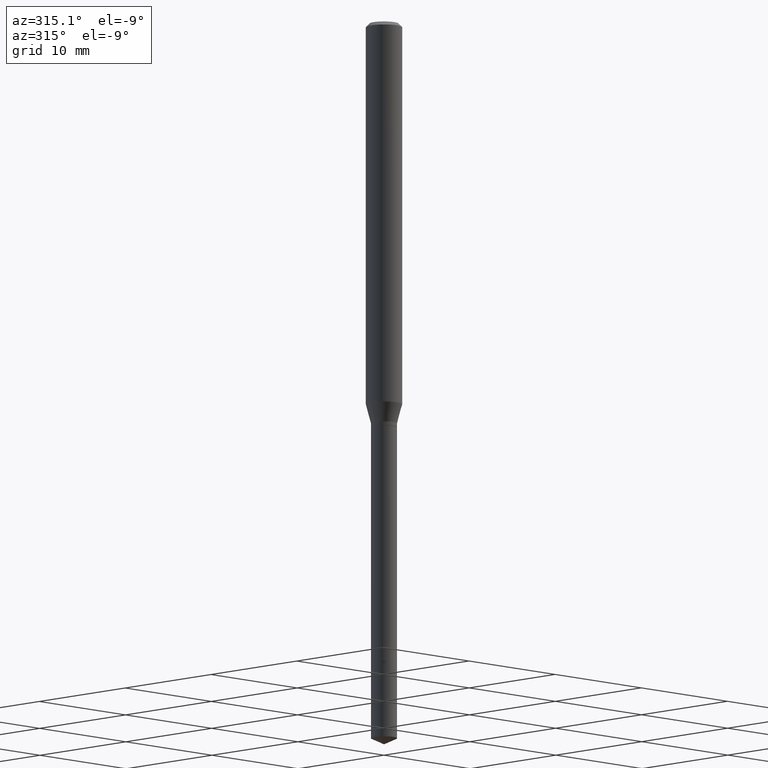
[diagram: clean part render]
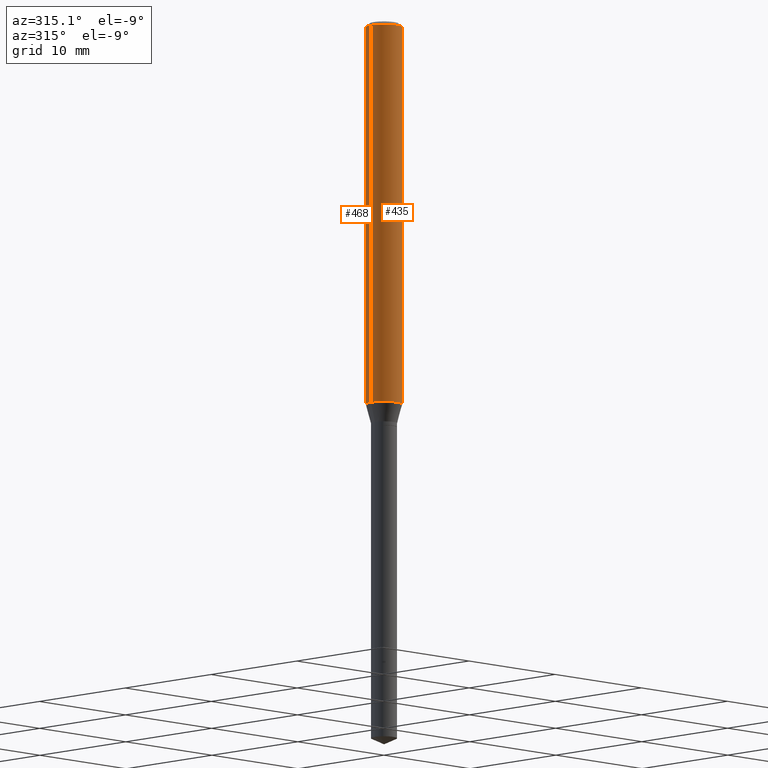
[diagram: same view with one multi-face feature highlighted, each face labeled with its STEP entity id]
A machine part, auxiliary view. The highlighted faces form ONE feature: a constant-radius fillet chain: 2 tangent blend faces with common blend radius 1.4999 mm. The faces share edges in the B-rep.
Their STEP definitions:
[1] entity #435 (Cylinder):
#10 = FACE_OUTER_BOUND ( 'NONE', #358, .T. ) ;
#14 = DIRECTION ( 'NONE',  ( -2.445468806185136877E-29, 3.491481338843145188E-15, 1.000000000000000000 ) ) ;
#22 = ORIENTED_EDGE ( 'NONE', *, *, #371, .T. ) ;
#30 = CARTESIAN_POINT ( 'NONE',  ( -0.05905000000000015098, -3.935656958967755285E-15, -1.247388148973221256 ) ) ;
#67 = CARTESIAN_POINT ( 'NONE',  ( 0.05905000000000007465, -4.123439461173745750E-16, 2.879382386107504074E-30 ) ) ;
#74 = VERTEX_POINT ( 'NONE', #30 ) ;
#100 = VERTEX_POINT ( 'NONE', #249 ) ;
#111 = AXIS2_PLACEMENT_3D ( 'NONE', #432, #349, #303 ) ;
#129 = CIRCLE ( 'NONE', #199, 0.05904999999999999832 ) ;
#147 = CYLINDRICAL_SURFACE ( 'NONE', #111, 0.05905000000000007465 ) ;
#148 = EDGE_CURVE ( 'NONE', #74, #177, #261, .T. ) ;
#153 = CARTESIAN_POINT ( 'NONE',  ( 2.888098660104664204E-31, -4.123439461173780263E-17, -0.01181000000000007218 ) ) ;
#162 = EDGE_CURVE ( 'NONE', #177, #223, #129, .T. ) ;
#164 = VECTOR ( 'NONE', #14, 39.37007874015748143 ) ;
#177 = VERTEX_POINT ( 'NONE', #190 ) ;
#187 = CARTESIAN_POINT ( 'NONE',  ( -0.05905000000000007465, 4.195754854663396902E-16, -2.904631170795525395E-30 ) ) ;
#190 = CARTESIAN_POINT ( 'NONE',  ( -0.05904999999999999832, -1.778657934056575972E-15, -0.01181000000000007218 ) ) ;
#195 = DIRECTION ( 'NONE',  ( -2.445468806185136597E-29, 3.491481338843145583E-15, 1.000000000000000000 ) ) ;
#199 = AXIS2_PLACEMENT_3D ( 'NONE', #153, #427, #430 ) ;
#213 = DIRECTION ( 'NONE',  ( -2.445468806185136877E-29, 3.491481338843145188E-15, 1.000000000000000000 ) ) ;
#223 = VERTEX_POINT ( 'NONE', #270 ) ;
#234 = AXIS2_PLACEMENT_3D ( 'NONE', #301, #195, #454 ) ;
#239 = VECTOR ( 'NONE', #213, 39.37007874015748143 ) ;
#249 = CARTESIAN_POINT ( 'NONE',  ( 0.05905000000000015098, -4.767576390551470487E-15, -1.247388148973221256 ) ) ;
#259 = ORIENTED_EDGE ( 'NONE', *, *, #148, .F. ) ;
#261 = LINE ( 'NONE', #187, #164 ) ;
#270 = CARTESIAN_POINT ( 'NONE',  ( 0.05904999999999999832, -4.535783407291118600E-16, -0.01181000000000007218 ) ) ;
#296 = LINE ( 'NONE', #67, #239 ) ;
#301 = CARTESIAN_POINT ( 'NONE',  ( 3.050448807519030637E-29, -4.355232444434095567E-15, -1.247388148973221256 ) ) ;
#303 = DIRECTION ( 'NONE',  ( 1.000000000000000000, -6.982962677686266711E-15, 4.876176775795936353E-29 ) ) ;
#332 = ORIENTED_EDGE ( 'NONE', *, *, #162, .F. ) ;
#349 = DIRECTION ( 'NONE',  ( -2.445468806185136597E-29, 3.491481338843145583E-15, 1.000000000000000000 ) ) ;
#358 = EDGE_LOOP ( 'NONE', ( #259, #376, #22, #332 ) ) ;
#371 = EDGE_CURVE ( 'NONE', #100, #223, #296, .T. ) ;
#376 = ORIENTED_EDGE ( 'NONE', *, *, #455, .T. ) ;
#427 = DIRECTION ( 'NONE',  ( -2.445468806185136597E-29, 3.491481338843145583E-15, 1.000000000000000000 ) ) ;
#430 = DIRECTION ( 'NONE',  ( 1.000000000000000000, -6.982962677686266711E-15, 0.000000000000000000 ) ) ;
#432 = CARTESIAN_POINT ( 'NONE',  ( 0.000000000000000000, 0.000000000000000000, 0.000000000000000000 ) ) ;
#435 = ADVANCED_FACE ( 'NONE', ( #10 ), #147, .T. ) ;
#449 = CIRCLE ( 'NONE', #234, 0.05905000000000015098 ) ;
#454 = DIRECTION ( 'NONE',  ( 1.000000000000000000, -6.982962677686271444E-15, 0.000000000000000000 ) ) ;
#455 = EDGE_CURVE ( 'NONE', #74, #100, #449, .T. ) ;
[2] entity #468 (Cylinder):
#14 = DIRECTION ( 'NONE',  ( -2.445468806185136877E-29, 3.491481338843145188E-15, 1.000000000000000000 ) ) ;
#18 = ORIENTED_EDGE ( 'NONE', *, *, #124, .T. ) ;
#30 = CARTESIAN_POINT ( 'NONE',  ( -0.05905000000000015098, -3.935656958967755285E-15, -1.247388148973221256 ) ) ;
#59 = EDGE_LOOP ( 'NONE', ( #18, #166, #140, #173 ) ) ;
#67 = CARTESIAN_POINT ( 'NONE',  ( 0.05905000000000007465, -4.123439461173745750E-16, 2.879382386107504074E-30 ) ) ;
#74 = VERTEX_POINT ( 'NONE', #30 ) ;
#100 = VERTEX_POINT ( 'NONE', #249 ) ;
#108 = FACE_OUTER_BOUND ( 'NONE', #59, .T. ) ;
#113 = DIRECTION ( 'NONE',  ( -2.445468806185136597E-29, 3.491481338843145583E-15, 1.000000000000000000 ) ) ;
#124 = EDGE_CURVE ( 'NONE', #100, #74, #168, .T. ) ;
#140 = ORIENTED_EDGE ( 'NONE', *, *, #411, .F. ) ;
#148 = EDGE_CURVE ( 'NONE', #74, #177, #261, .T. ) ;
#164 = VECTOR ( 'NONE', #14, 39.37007874015748143 ) ;
#166 = ORIENTED_EDGE ( 'NONE', *, *, #148, .T. ) ;
#168 = CIRCLE ( 'NONE', #434, 0.05905000000000015098 ) ;
#169 = CIRCLE ( 'NONE', #418, 0.05904999999999999832 ) ;
#173 = ORIENTED_EDGE ( 'NONE', *, *, #371, .F. ) ;
#177 = VERTEX_POINT ( 'NONE', #190 ) ;
#187 = CARTESIAN_POINT ( 'NONE',  ( -0.05905000000000007465, 4.195754854663396902E-16, -2.904631170795525395E-30 ) ) ;
#189 = CYLINDRICAL_SURFACE ( 'NONE', #255, 0.05905000000000007465 ) ;
#190 = CARTESIAN_POINT ( 'NONE',  ( -0.05904999999999999832, -1.778657934056575972E-15, -0.01181000000000007218 ) ) ;
#213 = DIRECTION ( 'NONE',  ( -2.445468806185136877E-29, 3.491481338843145188E-15, 1.000000000000000000 ) ) ;
#222 = CARTESIAN_POINT ( 'NONE',  ( 2.888098660104664204E-31, -4.123439461173780263E-17, -0.01181000000000007218 ) ) ;
#223 = VERTEX_POINT ( 'NONE', #270 ) ;
#229 = DIRECTION ( 'NONE',  ( 1.000000000000000000, -6.982962677686266711E-15, 4.876176775795936353E-29 ) ) ;
#239 = VECTOR ( 'NONE', #213, 39.37007874015748143 ) ;
#249 = CARTESIAN_POINT ( 'NONE',  ( 0.05905000000000015098, -4.767576390551470487E-15, -1.247388148973221256 ) ) ;
#255 = AXIS2_PLACEMENT_3D ( 'NONE', #392, #458, #229 ) ;
#260 = DIRECTION ( 'NONE',  ( -2.445468806185136597E-29, 3.491481338843145583E-15, 1.000000000000000000 ) ) ;
#261 = LINE ( 'NONE', #187, #164 ) ;
#270 = CARTESIAN_POINT ( 'NONE',  ( 0.05904999999999999832, -4.535783407291118600E-16, -0.01181000000000007218 ) ) ;
#296 = LINE ( 'NONE', #67, #239 ) ;
#298 = DIRECTION ( 'NONE',  ( 1.000000000000000000, -6.982962677686266711E-15, 0.000000000000000000 ) ) ;
#304 = CARTESIAN_POINT ( 'NONE',  ( 3.050448807519030637E-29, -4.355232444434095567E-15, -1.247388148973221256 ) ) ;
#310 = DIRECTION ( 'NONE',  ( 1.000000000000000000, -6.982962677686271444E-15, 0.000000000000000000 ) ) ;
#371 = EDGE_CURVE ( 'NONE', #100, #223, #296, .T. ) ;
#392 = CARTESIAN_POINT ( 'NONE',  ( 0.000000000000000000, 0.000000000000000000, 0.000000000000000000 ) ) ;
#411 = EDGE_CURVE ( 'NONE', #223, #177, #169, .T. ) ;
#418 = AXIS2_PLACEMENT_3D ( 'NONE', #222, #260, #298 ) ;
#434 = AXIS2_PLACEMENT_3D ( 'NONE', #304, #113, #310 ) ;
#458 = DIRECTION ( 'NONE',  ( -2.445468806185136597E-29, 3.491481338843145583E-15, 1.000000000000000000 ) ) ;
#468 = ADVANCED_FACE ( 'NONE', ( #108 ), #189, .T. ) ;